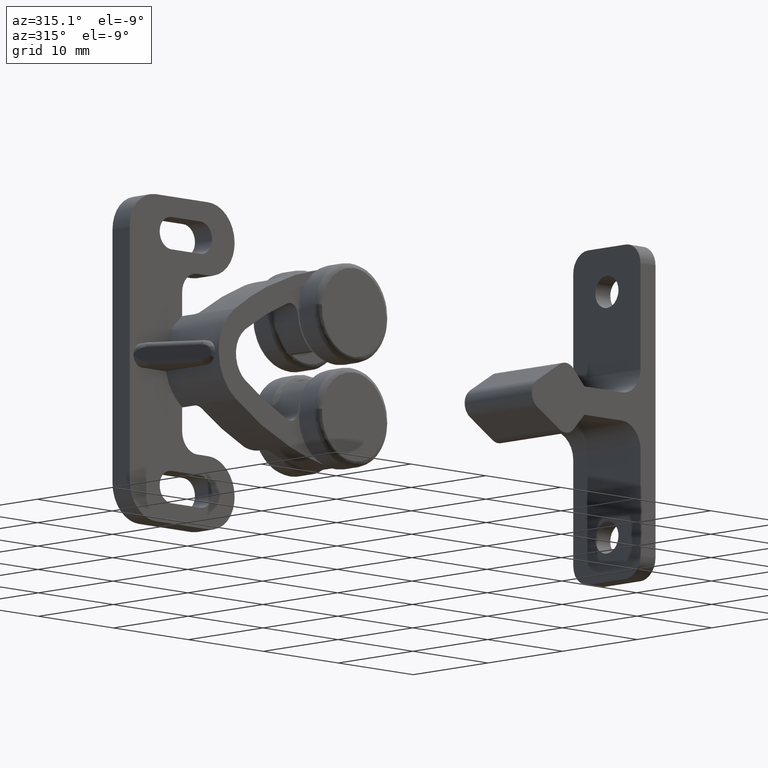
[diagram: clean part render]
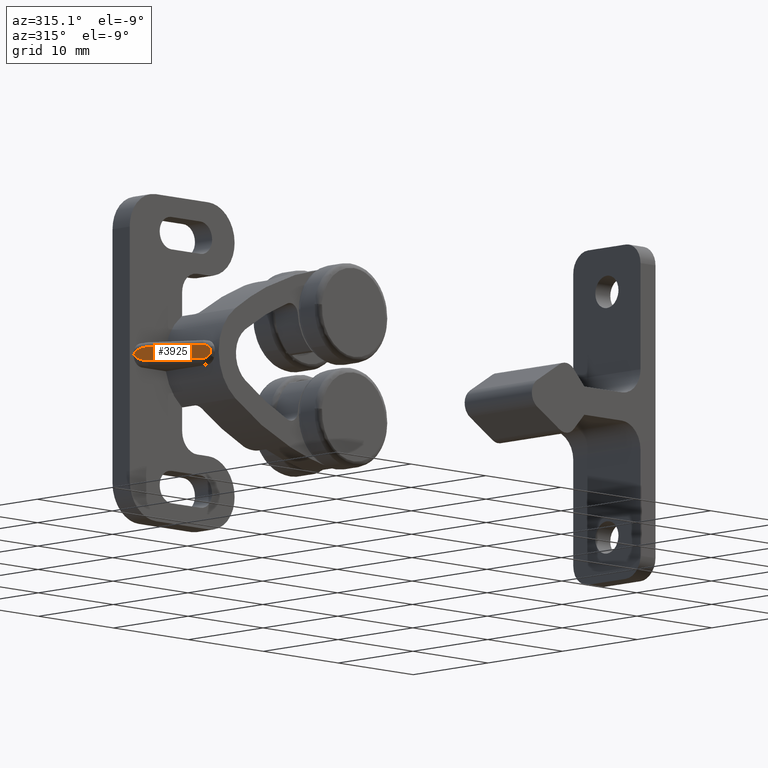
[diagram: same view with one face highlighted and labeled with its STEP entity id]
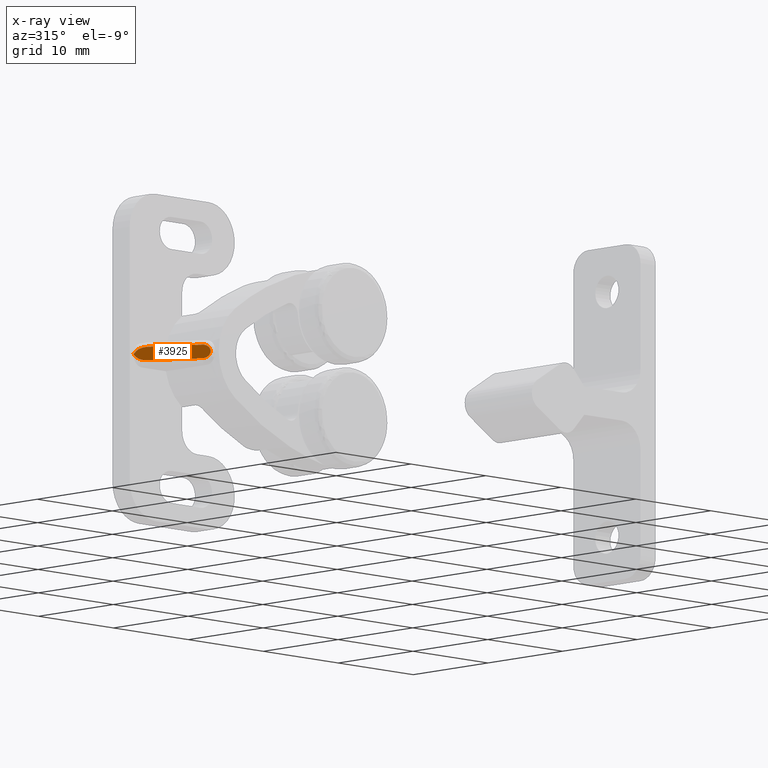
[diagram: x-ray of the same camera — body ghosted, the highlighted face saturated]
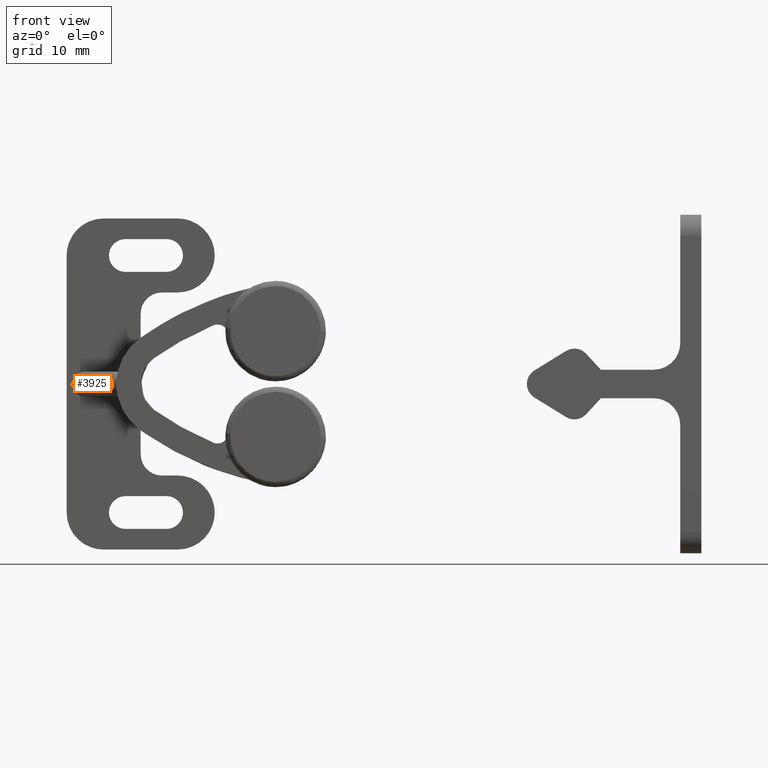
[diagram: same view with one face highlighted and labeled with its STEP entity id]
A machine part, auxiliary view. The second image highlights one B-rep face of the part: STEP entity #3925.
The next image is the same camera in x-ray: the body ghosted, the highlighted face saturated — about 0% of this face is hidden behind the body in this view.
A second angle (front view) of the same face is appended — the face is thin or edge-on in the first view.
In plain terms, the highlighted face is a freeform B-spline surface patch.
Its self-contained STEP definition (entity closure, byte-faithful):
#3247=CARTESIAN_POINT('',(1.220689194048842,-3.507154400031905,0.650000000000039));
#3248=VERTEX_POINT('',#3247);
#3276=CARTESIAN_POINT('',(0.653017885836888,-2.556304958776885,0.316621676189275));
#3277=VERTEX_POINT('',#3276);
#3286=CARTESIAN_POINT('',(1.220689194048842,-3.507154400031905,0.650000000000039));
#3287=CARTESIAN_POINT('',(0.838961410131911,-2.867760361971112,0.650000000000000));
#3288=CARTESIAN_POINT('',(0.653017885836888,-2.556304958776885,0.316621676189275));
#3296=(BOUNDED_CURVE()B_SPLINE_CURVE(2,(#3286,#3287,#3288),.UNSPECIFIED.,.F.,.U.)CURVE()GEOMETRIC_REPRESENTATION_ITEM()QUASI_UNIFORM_CURVE()RATIONAL_B_SPLINE_CURVE((1.0,0.862296431356398,1.0))REPRESENTATION_ITEM(''));
#3297=EDGE_CURVE('',#3248,#3277,#3296,.T.);
#3322=CARTESIAN_POINT('',(0.500000000000000,-2.300000000000080,0.0));
#3323=VERTEX_POINT('',#3322);
#3331=CARTESIAN_POINT('',(0.653017885836888,-2.556304958776885,0.316621676189275));
#3332=CARTESIAN_POINT('',(0.625600499054494,-2.510380835916377,0.267465017018502));
#3333=CARTESIAN_POINT('',(0.598712835808242,-2.465343999978889,0.217180533841458));
#3334=CARTESIAN_POINT('',(0.547324636878184,-2.379268766771042,0.112271737334659));
#3335=CARTESIAN_POINT('',(0.522799388450494,-2.338188975654663,0.057433276737762));
#3336=CARTESIAN_POINT('',(0.500000000000000,-2.300000000000085,-3.825825E-017));
#3337=B_SPLINE_CURVE_WITH_KNOTS('',3,(#3331,#3332,#3333,#3334,#3335,#3336),.UNSPECIFIED.,.F.,.U.,(4,2,4),(0.0,0.500000000000000,1.0),.UNSPECIFIED.);
#3338=EDGE_CURVE('',#3277,#3323,#3337,.T.);
#3358=CARTESIAN_POINT('',(3.966450721657820,-8.106304958776940,0.650000000000000));
#3359=VERTEX_POINT('',#3358);
#3379=CARTESIAN_POINT('',(3.966450721657820,-8.106304958776940,0.650000000000000));
#3380=CARTESIAN_POINT('',(1.220689194048842,-3.507154400031905,0.650000000000039));
#3381=QUASI_UNIFORM_CURVE('',1,(#3379,#3380),.UNSPECIFIED.,.F.,.U.);
#3382=EDGE_CURVE('',#3359,#3248,#3381,.T.);
#3445=CARTESIAN_POINT('',(4.302042495626780,-8.668421180174951,0.326382220167048));
#3446=VERTEX_POINT('',#3445);
#3472=CARTESIAN_POINT('',(4.302042495626785,-8.668421180174947,0.326382220167048));
#3473=CARTESIAN_POINT('',(4.189861849568874,-8.480518598027945,0.649999999999999));
#3474=CARTESIAN_POINT('',(3.966450721657820,-8.106304958776940,0.650000000000000));
#3482=(BOUNDED_CURVE()B_SPLINE_CURVE(2,(#3472,#3473,#3474),.UNSPECIFIED.,.F.,.U.)CURVE()GEOMETRIC_REPRESENTATION_ITEM()QUASI_UNIFORM_CURVE()RATIONAL_B_SPLINE_CURVE((1.0,0.866639051902432,1.0))REPRESENTATION_ITEM(''));
#3483=EDGE_CURVE('',#3446,#3359,#3482,.T.);
#3514=CARTESIAN_POINT('',(4.302077632479515,-8.668480034403270,-0.326280836618508));
#3515=VERTEX_POINT('',#3514);
#3544=CARTESIAN_POINT('',(4.302077632479515,-8.668480034403270,-0.326280836618508));
#3545=CARTESIAN_POINT('',(4.318917607032160,-8.696686991778948,-0.277680837427006));
#3546=CARTESIAN_POINT('',(4.333147308841645,-8.720521742309833,-0.226457226837114));
#3547=CARTESIAN_POINT('',(4.353576055877131,-8.754739893594271,-0.115938311921846));
#3548=CARTESIAN_POINT('',(4.359256433325765,-8.764254525820729,-0.058710306475773));
#3549=CARTESIAN_POINT('',(4.359244129280889,-8.764233916545564,0.029561353578811));
#3550=CARTESIAN_POINT('',(4.357826811449290,-8.761859909177634,0.058519982800435));
#3551=CARTESIAN_POINT('',(4.352430725565020,-8.752821465321482,0.115593963624052));
#3552=CARTESIAN_POINT('',(4.348429667483408,-8.746119693034780,0.143828569324647));
#3553=CARTESIAN_POINT('',(4.333109431175313,-8.720458297218723,0.226605800646152));
#3554=CARTESIAN_POINT('',(4.318884435176923,-8.696631428921442,0.277796735265450));
#3555=CARTESIAN_POINT('',(4.302042495626780,-8.668421180174951,0.326382220167048));
#3556=B_SPLINE_CURVE_WITH_KNOTS('',3,(#3544,#3545,#3546,#3547,#3548,#3549,#3550,#3551,#3552,#3553,#3554,#3555),.UNSPECIFIED.,.F.,.U.,(4,2,2,2,2,4),(0.0,0.250000000000000,0.499999999999999,0.624999999999999,0.749999999999999,1.0),.UNSPECIFIED.);
#3557=EDGE_CURVE('',#3515,#3446,#3556,.T.);
#3620=CARTESIAN_POINT('',(3.966450721657820,-8.106304958776940,-0.650000000000000));
#3621=VERTEX_POINT('',#3620);
#3648=CARTESIAN_POINT('',(3.966450721657820,-8.106304958776940,-0.650000000000000));
#3649=CARTESIAN_POINT('',(4.189908452114194,-8.480596657291358,-0.649999976337179));
#3650=CARTESIAN_POINT('',(4.302077632479517,-8.668480034403274,-0.326280836618508));
#3658=(BOUNDED_CURVE()B_SPLINE_CURVE(2,(#3648,#3649,#3650),.UNSPECIFIED.,.F.,.U.)CURVE()GEOMETRIC_REPRESENTATION_ITEM()QUASI_UNIFORM_CURVE()RATIONAL_B_SPLINE_CURVE((1.0,0.866594072375549,1.0))REPRESENTATION_ITEM(''));
#3659=EDGE_CURVE('',#3621,#3515,#3658,.T.);
#3678=CARTESIAN_POINT('',(1.220689194048860,-3.507154400031935,-0.650000000000013));
#3679=VERTEX_POINT('',#3678);
#3698=CARTESIAN_POINT('',(1.220689194048860,-3.507154400031935,-0.650000000000013));
#3699=CARTESIAN_POINT('',(3.966450721657820,-8.106304958776940,-0.650000000000000));
#3700=QUASI_UNIFORM_CURVE('',1,(#3698,#3699),.UNSPECIFIED.,.F.,.U.);
#3701=EDGE_CURVE('',#3679,#3621,#3700,.T.);
#3780=CARTESIAN_POINT('',(0.653017885836888,-2.556304958776885,-0.316621676189275));
#3781=VERTEX_POINT('',#3780);
#3806=CARTESIAN_POINT('',(0.653017885836888,-2.556304958776885,-0.316621676189275));
#3807=CARTESIAN_POINT('',(0.838961410131948,-2.867760361971172,-0.650000000000000));
#3808=CARTESIAN_POINT('',(1.220689194048860,-3.507154400031935,-0.650000000000013));
#3816=(BOUNDED_CURVE()B_SPLINE_CURVE(2,(#3806,#3807,#3808),.UNSPECIFIED.,.F.,.U.)CURVE()GEOMETRIC_REPRESENTATION_ITEM()QUASI_UNIFORM_CURVE()RATIONAL_B_SPLINE_CURVE((1.0,0.862296431356533,1.0))REPRESENTATION_ITEM(''));
#3817=EDGE_CURVE('',#3781,#3679,#3816,.T.);
#3842=CARTESIAN_POINT('',(0.500000000000000,-2.300000000000085,3.825825E-017));
#3843=CARTESIAN_POINT('',(0.522799388450456,-2.338188975654600,-0.057433276737821));
#3844=CARTESIAN_POINT('',(0.547324636878186,-2.379268766771045,-0.112271737334664));
#3845=CARTESIAN_POINT('',(0.598712835808243,-2.465343999978891,-0.217180533841459));
#3846=CARTESIAN_POINT('',(0.625600499054494,-2.510380835916376,-0.267465017018501));
#3847=CARTESIAN_POINT('',(0.653017885836888,-2.556304958776885,-0.316621676189275));
#3848=B_SPLINE_CURVE_WITH_KNOTS('',3,(#3842,#3843,#3844,#3845,#3846,#3847),.UNSPECIFIED.,.F.,.U.,(4,2,4),(0.0,0.500000000000000,1.0),.UNSPECIFIED.);
#3849=EDGE_CURVE('',#3323,#3781,#3848,.T.);
#3909=CARTESIAN_POINT('',(4.552017860740094,-9.087129916739656,-0.714934968428910));
#3910=CARTESIAN_POINT('',(0.307230445880713,-1.977110996850203,-0.714934968428910));
#3911=CARTESIAN_POINT('',(4.552017860740094,-9.087129916739656,0.714934933560219));
#3912=CARTESIAN_POINT('',(0.307230445880713,-1.977110996850203,0.714934933560219));
#3913=B_SPLINE_SURFACE_WITH_KNOTS('',1,1,((#3909,#3911),(#3910,#3912)),.UNSPECIFIED.,.F.,.F.,.U.,(2,2),(2,2),(0.0,8.280736032414907),(0.041708353571221,0.958291624077037),.UNSPECIFIED.);
#3914=ORIENTED_EDGE('',*,*,#3382,.T.);
#3915=ORIENTED_EDGE('',*,*,#3297,.T.);
#3916=ORIENTED_EDGE('',*,*,#3338,.T.);
#3917=ORIENTED_EDGE('',*,*,#3849,.T.);
#3918=ORIENTED_EDGE('',*,*,#3817,.T.);
#3919=ORIENTED_EDGE('',*,*,#3701,.T.);
#3920=ORIENTED_EDGE('',*,*,#3659,.T.);
#3921=ORIENTED_EDGE('',*,*,#3557,.T.);
#3922=ORIENTED_EDGE('',*,*,#3483,.T.);
#3923=EDGE_LOOP('',(#3914,#3915,#3916,#3917,#3918,#3919,#3920,#3921,#3922));
#3924=FACE_OUTER_BOUND('',#3923,.T.);
#3925=ADVANCED_FACE('',(#3924),#3913,.F.);